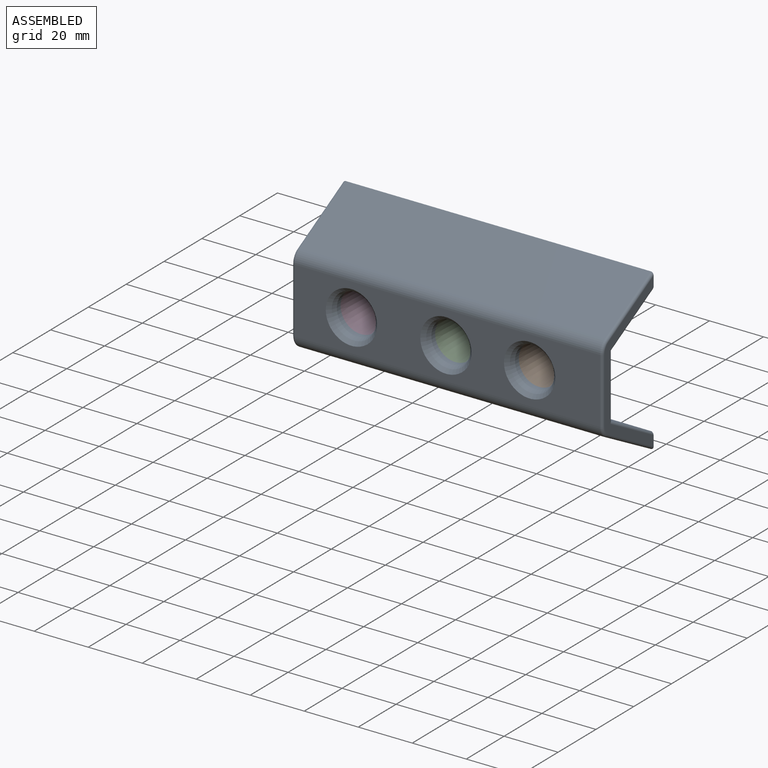
[diagram: assembled view]
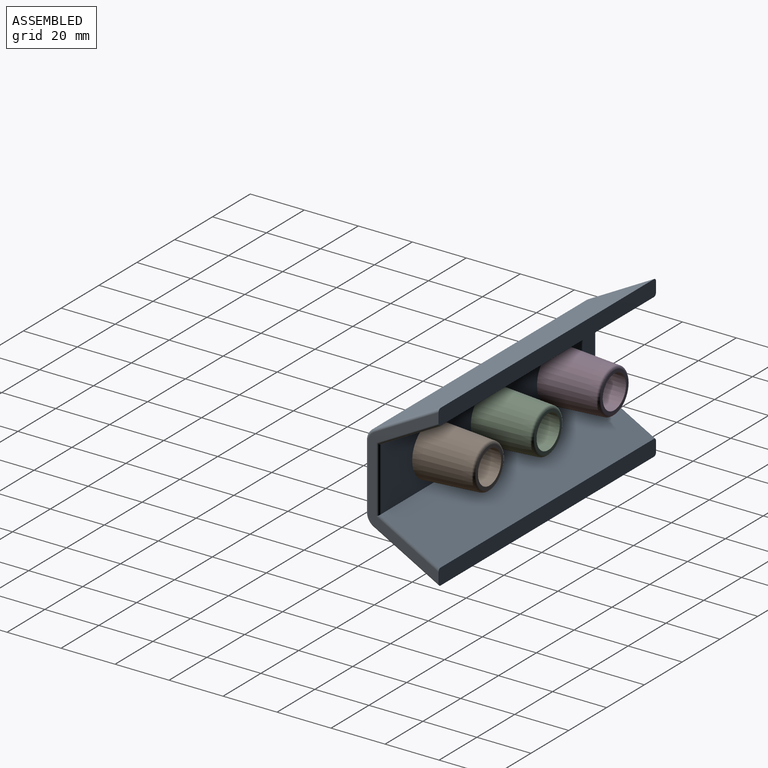
[diagram: assembled view, second angle]
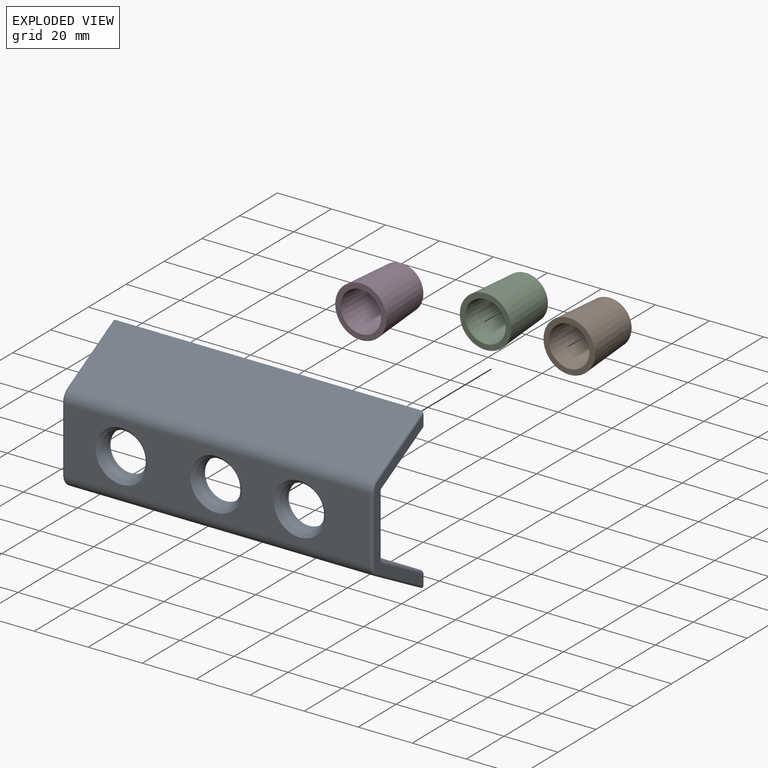
[diagram: exploded view]
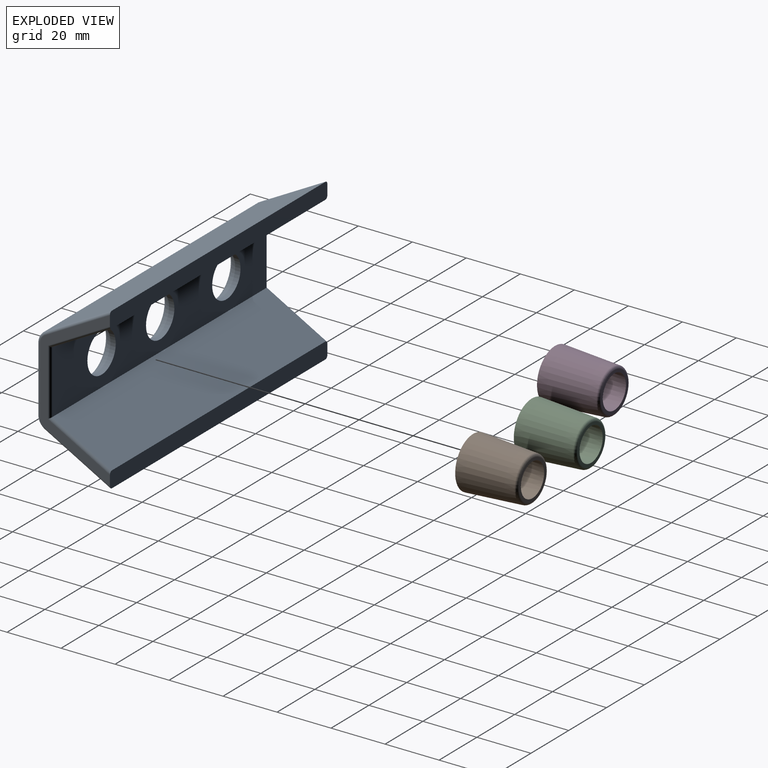
[diagram: exploded view, second angle]
ASSEMBLY  parts=4 mates=3
PART A: 129 faces, bbox 115x59.5x27.9 mm
  f0: plane 113x24.39mm, normal (0,-0.88,0.48), area 2260.4mm2, adj f12,f13,f19,f29,f37,f38,f39,f40
  f1: plane 57.18x26mm, normal (1,0,0), area 260.7mm2, adj f9,f12,f19,f20,f21,f22,f23,f24
  f2: plane 57.18x26mm, normal (-1,0,0), area 260.7mm2, adj f9,f12,f13,f14,f15,f16,f17,f18
  f3: plane 113x23.45mm, normal (0,0,-1), area 2120.2mm2, adj f4,f5,f6,f10,f11,f17,f23
  f4: cylinder r=7.5mm len=15mm, axis (0,0,-1), area 94.2mm2, adj f3,f36
  f5: cylinder r=7.5mm len=15mm, axis (0,0,-1), area 94.2mm2, adj f3,f35
  f6: cylinder r=7.5mm len=15mm, axis (0,0,-1), area 94.2mm2, adj f3,f34
  f7: plane 113x24.06mm, normal (0,0,1), area 1868.6mm2, adj f14,f20,f26,f29,f31,f32,f33
  f8: plane 113x24.39mm, normal (0,0.88,0.48), area 3140mm2, adj f9,f15,f21,f26
  f9: plane 115x6mm, normal (0,0,-1), area 689mm2, adj f1,f2,f8,f10,f15,f18,f21,f24
  f10: plane 113x22mm, normal (0,-0.88,-0.48), area 2831.8mm2, adj f3,f9,f18,f24
  f11: plane 113x22mm, normal (0,0.88,-0.48), area 2831.8mm2, adj f3,f12,f16,f22
  f12: plane 115x6mm, normal (0,0,-1), area 689mm2, adj f0,f1,f2,f11,f13,f16,f19,f22
  f13: cylinder r=1mm len=24.87mm, axis (0,0.48,0.88), area 43.3mm2, adj f0,f2,f12,f30
  f14: cylinder r=1mm len=24.06mm, axis (0,1,0), area 37.8mm2, adj f2,f7,f27,f30
  f15: cylinder r=1mm len=24.87mm, axis (0,0.48,-0.88), area 43.3mm2, adj f2,f8,f9,f27
  f16: cylinder r=1mm len=23.48mm, axis (0,-0.48,-0.88), area 40mm2, adj f2,f11,f12,f17
  f17: cylinder r=1mm len=24.64mm, axis (0,-1,0), area 37.5mm2, adj f2,f3,f16,f18
  f18: cylinder r=1mm len=23.48mm, axis (0,-0.48,0.88), area 40mm2, adj f2,f9,f10,f17
  f19: cylinder r=1mm len=24.87mm, axis (0,0.48,0.88), area 43.3mm2, adj f0,f1,f12,f28
  f20: cylinder r=1mm len=24.06mm, axis (0,1,0), area 37.8mm2, adj f1,f7,f25,f28
  f21: cylinder r=1mm len=24.87mm, axis (0,0.48,-0.88), area 43.3mm2, adj f1,f8,f9,f25
  f22: cylinder r=1mm len=23.48mm, axis (0,-0.48,-0.88), area 40mm2, adj f1,f11,f12,f23
  f23: cylinder r=1mm len=24.64mm, axis (0,-1,0), area 37.5mm2, adj f1,f3,f22,f24
  f24: cylinder r=1mm len=23.48mm, axis (0,-0.48,0.88), area 40mm2, adj f1,f9,f10,f23
  f25: torus R=4mm, axis (1,0,0), area 7.8mm2, adj f1,f20,f21,f26
  f26: cylinder r=5mm len=113mm, axis (-1,0,0), area 605.4mm2, adj f7,f8,f25,f27
  f27: torus R=4mm, axis (-1,0,0), area 7.8mm2, adj f2,f14,f15,f26
  f28: torus R=4mm, axis (1,0,0), area 7.8mm2, adj f1,f19,f20,f29
  f29: cylinder r=5mm len=113mm, axis (1,0,0), area 605.4mm2, adj f0,f7,f28,f30
  f30: torus R=4mm, axis (-1,0,0), area 7.8mm2, adj f2,f13,f14,f29
  f31: cone r=7.5mm half-angle=45deg, axis (0,0,1), area 101.7mm2, adj f7,f34
  f32: cone r=7.5mm half-angle=45deg, axis (0,0,1), area 101.7mm2, adj f7,f35
  f33: cone r=7.5mm half-angle=45deg, axis (0,0,1), area 101.7mm2, adj f7,f36
  f34: cone r=7.5mm half-angle=22.5deg, axis (0,0,1), area 91.2mm2, adj f6,f31
  f35: cone r=7.5mm half-angle=22.5deg, axis (0,0,1), area 91.2mm2, adj f5,f32
  f36: cone r=7.5mm half-angle=22.5deg, axis (0,0,1), area 91.2mm2, adj f4,f33
  f37: plane 11.87x7.71mm, normal (0.88,-0.23,-0.41), area 28.2mm2, adj f0,f38,f45,f46
  f38: plane 11.87x7.71mm, normal (-0.88,-0.22,-0.41), area 28.1mm2, adj f0,f37,f39,f46
  f39: plane 3.16x1.76mm, normal (0,-0.48,-0.88), area 6.3mm2, adj f0,f38,f40,f46
  f40: plane 14.43x9.1mm, normal (0.88,0.23,0.42), area 34.9mm2, adj f0,f39,f41,f46
  f41: plane 9.3x6.31mm, normal (1,0,0), area 19mm2, adj f0,f40,f42,f46
  f42: plane 2.92x1.76mm, normal (0,0.48,0.88), area 5.8mm2, adj f0,f41,f43,f46
  f43: plane 9.42x6.37mm, normal (-1,0,0), area 19.3mm2, adj f0,f42,f44,f46
  f44: plane 14.31x9.04mm, normal (-0.88,0.23,0.42), area 34.6mm2, adj f0,f43,f45,f46
  f45: plane 3.13x1.76mm, normal (0,-0.48,-0.88), area 6.3mm2, adj f0,f37,f44,f46
  f46: plane 21.81x19.49mm, normal (0,-0.88,0.48), area 117.1mm2, adj f37,f38,f39,f40,f41,f42,f43,f44
  f47: plane 2.61x1.76mm, normal (0,-0.48,-0.88), area 5.2mm2, adj f48,f61,f62,f128
  f48: plane 9.82x6.59mm, normal (-1,0,0), area 20.2mm2, adj f47,f49,f62,f128
  f49: plane 3.23x1.76mm, normal (0,0.48,0.88), area 6.5mm2, adj f48,f50,f62,f128
  f50: extruded ~5.03x2.33mm, area 10.5mm2, adj f49,f51,f62,f128
  f51: extruded ~4.18x3.51mm, area 8.3mm2, adj f50,f52,f62,f128
  f52: extruded ~4.45x3.66mm, area 9mm2, adj f51,f61,f62,f128
  f53: extruded ~6.05x4.54mm, area 13.2mm2, adj f0,f54,f60,f62
  f54: extruded ~9.31x7.31mm, area 26.9mm2, adj f0,f53,f55,f62
  f55: plane 6.44x1.76mm, normal (0,-0.48,-0.88), area 12.9mm2, adj f0,f54,f56,f62
  f56: plane 22.77x13.65mm, normal (1,0,0), area 49.7mm2, adj f0,f55,f57,f62
  f57: plane 2.89x1.76mm, normal (0,0.48,0.88), area 5.8mm2, adj f0,f56,f58,f62
  f58: plane 9.54x6.44mm, normal (-1,0,0), area 19.5mm2, adj f0,f57,f59,f62
  f59: plane 2.93x1.76mm, normal (0,0.48,0.88), area 5.9mm2, adj f0,f58,f60,f62
  f60: extruded ~7.37x2.74mm, area 15.6mm2, adj f0,f53,f59,f62
  f61: extruded ~5.56x2.35mm, area 11.6mm2, adj f47,f52,f62,f128
  f62: plane 21.81x15.75mm, normal (0,-0.88,0.48), area 152.2mm2, adj f47,f48,f49,f50,f51,f52,f53,f54
  f63: plane 13.85x1.76mm, normal (0,0.48,0.88), area 27.7mm2, adj f0,f64,f74,f75
  f64: plane 3.23x2.99mm, normal (-1,0,0), area 5.2mm2, adj f0,f63,f65,f75
  f65: plane 10.96x1.76mm, normal (0,-0.48,-0.88), area 21.9mm2, adj f0,f64,f66,f75
  f66: plane 8.98x6.13mm, normal (-1,0,0), area 18.3mm2, adj f0,f65,f67,f75
  f67: plane 10.3x1.76mm, normal (0,0.48,0.88), area 20.6mm2, adj f0,f66,f68,f75
  f68: plane 3.2x2.98mm, normal (-1,0,0), area 5.1mm2, adj f0,f67,f69,f75
  f69: plane 10.3x1.76mm, normal (0,-0.48,-0.88), area 20.6mm2, adj f0,f68,f70,f75
  f70: plane 7.99x5.59mm, normal (-1,0,0), area 16mm2, adj f0,f69,f71,f75
  f71: plane 10.96x1.76mm, normal (0,0.48,0.88), area 21.9mm2, adj f0,f70,f72,f75
  f72: plane 3.21x2.99mm, normal (-1,0,0), area 5.1mm2, adj f0,f71,f73,f75
  f73: plane 13.85x1.76mm, normal (0,-0.48,-0.88), area 27.7mm2, adj f0,f72,f74,f75
  f74: plane 22.77x13.65mm, normal (1,0,0), area 49.7mm2, adj f0,f63,f73,f75
  f75: plane 21.81x13.85mm, normal (0,-0.88,0.48), area 154.5mm2, adj f63,f64,f65,f66,f67,f68,f69,f70
  f76: plane 1.78x1.76mm, normal (0,0.48,0.88), area 3.6mm2, adj f0,f77,f79,f80
  f77: plane 16.76x10.38mm, normal (-1,0.02,0.04), area 36mm2, adj f0,f76,f78,f80
  f78: plane 3.52x1.76mm, normal (0,-0.48,-0.88), area 7mm2, adj f0,f77,f79,f80
  f79: plane 16.76x10.38mm, normal (1,0.02,0.04), area 36mm2, adj f0,f76,f78,f80
  f80: plane 15.8x8.62mm, normal (0,-0.88,0.48), area 47.7mm2, adj f76,f77,f78,f79
  f81: extruded ~2.99x2.86mm, area 7.1mm2, adj f0,f82,f87,f88
  f82: extruded ~2.6x2.5mm, area 3.8mm2, adj f0,f81,f83,f88
  f83: extruded ~2.01x1.46mm, area 3.2mm2, adj f0,f82,f84,f88
  f84: extruded ~2.05x1.51mm, area 3.4mm2, adj f0,f83,f85,f88
  f85: extruded ~2.57x2.44mm, area 3.6mm2, adj f0,f84,f86,f88
  f86: extruded ~2.58x2.47mm, area 3.7mm2, adj f0,f85,f87,f88
  f87: extruded ~2.04x1.52mm, area 3.4mm2, adj f0,f81,f86,f88
  f88: plane 4.1x4.04mm, normal (0,-0.88,0.48), area 15.6mm2, adj f81,f82,f83,f84,f85,f86,f87
  f89: plane 1.78x1.76mm, normal (0,0.48,0.88), area 3.6mm2, adj f0,f90,f92,f93
  f90: plane 16.76x10.38mm, normal (-1,0.02,0.04), area 36mm2, adj f0,f89,f91,f93
  f91: plane 3.52x1.76mm, normal (0,-0.48,-0.88), area 7mm2, adj f0,f90,f92,f93
  f92: plane 16.76x10.38mm, normal (1,0.02,0.04), area 36mm2, adj f0,f89,f91,f93
  f93: plane 15.8x8.62mm, normal (0,-0.88,0.48), area 47.7mm2, adj f89,f90,f91,f92
  f94: extruded ~2.99x2.86mm, area 7.1mm2, adj f0,f95,f100,f101
  f95: extruded ~2.6x2.5mm, area 3.8mm2, adj f0,f94,f96,f101
  f96: extruded ~2.01x1.46mm, area 3.2mm2, adj f0,f95,f97,f101
  f97: extruded ~2.05x1.51mm, area 3.4mm2, adj f0,f96,f98,f101
  f98: extruded ~2.57x2.44mm, area 3.6mm2, adj f0,f97,f99,f101
  f99: extruded ~2.58x2.47mm, area 3.7mm2, adj f0,f98,f100,f101
  f100: extruded ~2.04x1.52mm, area 3.4mm2, adj f0,f94,f99,f101
  f101: plane 4.1x4.04mm, normal (0,-0.88,0.48), area 15.6mm2, adj f94,f95,f96,f97,f98,f99,f100
  f102: plane 1.78x1.76mm, normal (0,0.48,0.88), area 3.6mm2, adj f0,f103,f105,f106
  f103: plane 16.76x10.38mm, normal (-1,0.02,0.04), area 36mm2, adj f0,f102,f104,f106
  f104: plane 3.52x1.76mm, normal (0,-0.48,-0.88), area 7mm2, adj f0,f103,f105,f106
  f105: plane 16.76x10.38mm, normal (1,0.02,0.04), area 36mm2, adj f0,f102,f104,f106
  f106: plane 15.8x8.62mm, normal (0,-0.88,0.48), area 47.7mm2, adj f102,f103,f104,f105
  f107: extruded ~2.99x2.86mm, area 7.1mm2, adj f0,f108,f113,f114
  f108: extruded ~2.6x2.5mm, area 3.8mm2, adj f0,f107,f109,f114
  f109: extruded ~2.01x1.46mm, area 3.2mm2, adj f0,f108,f110,f114
  f110: extruded ~2.05x1.51mm, area 3.4mm2, adj f0,f109,f111,f114
  f111: extruded ~2.57x2.44mm, area 3.6mm2, adj f0,f110,f112,f114
  f112: extruded ~2.58x2.47mm, area 3.7mm2, adj f0,f111,f113,f114
  f113: extruded ~2.04x1.52mm, area 3.4mm2, adj f0,f107,f112,f114
  f114: plane 4.1x4.04mm, normal (0,-0.88,0.48), area 15.6mm2, adj f107,f108,f109,f110,f111,f112,f113
  f115: plane 2.89x1.76mm, normal (0,0.48,0.88), area 5.8mm2, adj f0,f116,f126,f127
  f116: plane 22.77x13.65mm, normal (-1,0,0), area 49.7mm2, adj f0,f115,f117,f127
  f117: plane 2.89x1.76mm, normal (0,-0.48,-0.88), area 5.8mm2, adj f0,f116,f118,f127
  f118: plane 10.24x6.82mm, normal (1,0,0), area 21.1mm2, adj f0,f117,f119,f127
  f119: plane 13.09x1.76mm, normal (0,-0.48,-0.88), area 26.2mm2, adj f0,f118,f120,f127
  f120: plane 10.24x6.82mm, normal (-1,0,0), area 21.1mm2, adj f0,f119,f121,f127
  f121: plane 2.89x1.76mm, normal (0,-0.48,-0.88), area 5.8mm2, adj f0,f120,f122,f127
  f122: plane 22.77x13.65mm, normal (1,0,0), area 49.7mm2, adj f0,f121,f123,f127
  f123: plane 2.89x1.76mm, normal (0,0.48,0.88), area 5.8mm2, adj f0,f122,f124,f127
  f124: plane 11.22x7.35mm, normal (-1,0,0), area 23.4mm2, adj f0,f123,f125,f127
  f125: plane 13.09x1.76mm, normal (0,0.48,0.88), area 26.2mm2, adj f0,f124,f126,f127
  f126: plane 11.22x7.35mm, normal (1,0,0), area 23.4mm2, adj f0,f115,f125,f127
  f127: plane 21.81x18.87mm, normal (0,-0.88,0.48), area 177.3mm2, adj f115,f116,f117,f118,f119,f120,f121,f122
  f128: plane 9.88x8.86mm, normal (0,-0.88,0.48), area 88.6mm2, adj f47,f48,f49,f50,f51,f52,f61
PART B: 5 faces, bbox 19x22x19 mm
  f0: cone r=6.15mm half-angle=3.5deg, axis (0,-1,0), area 945.2mm2, adj f1,f3
  f1: plane 14.43x14.43mm, normal (0,1,0), area 44.6mm2, adj f0,f4
  f2: cone r=8.15mm half-angle=3.5deg, axis (0,-1,0), area 1174.3mm2, adj f3,f4
  f3: plane 19.01x19.01mm, normal (0,-1,0), area 107mm2, adj f0,f2
  f4: torus R=7.21mm, axis (0,1,0), area 74.3mm2, adj f1,f2
PART C: same geometry as B
PART D: same geometry as B
PLACE A rot(axis=(1,0,0),90deg) t=(76.66,-31.04,-13.58)mm fixed
PLACE B t=(48.51,-31.04,1.42)mm
PLACE C t=(17.51,-31.04,1.42)mm
PLACE D t=(-17.49,-31.04,1.42)mm
MATE fastened C.f4 <-> A.f5  axis (0,-1,0) through (23.66,-31.04,1.42)mm
MATE fastened D.f4 <-> A.f4  axis (0,-1,0) through (-11.34,-31.04,1.42)mm
MATE fastened A.f6 <-> B.f4  axis (0,1,0) through (54.66,-31.04,1.42)mm
